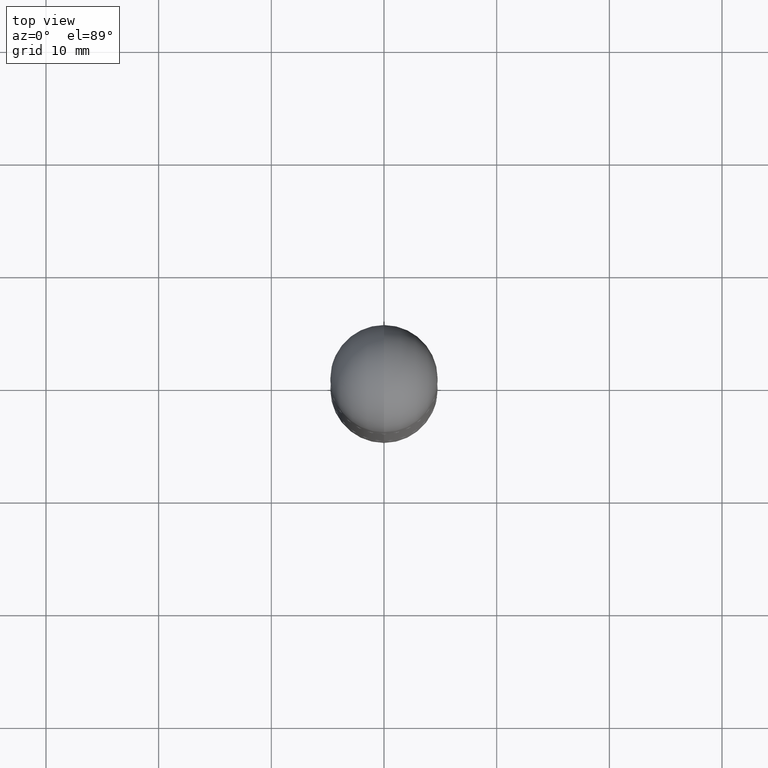
[diagram: clean part render]
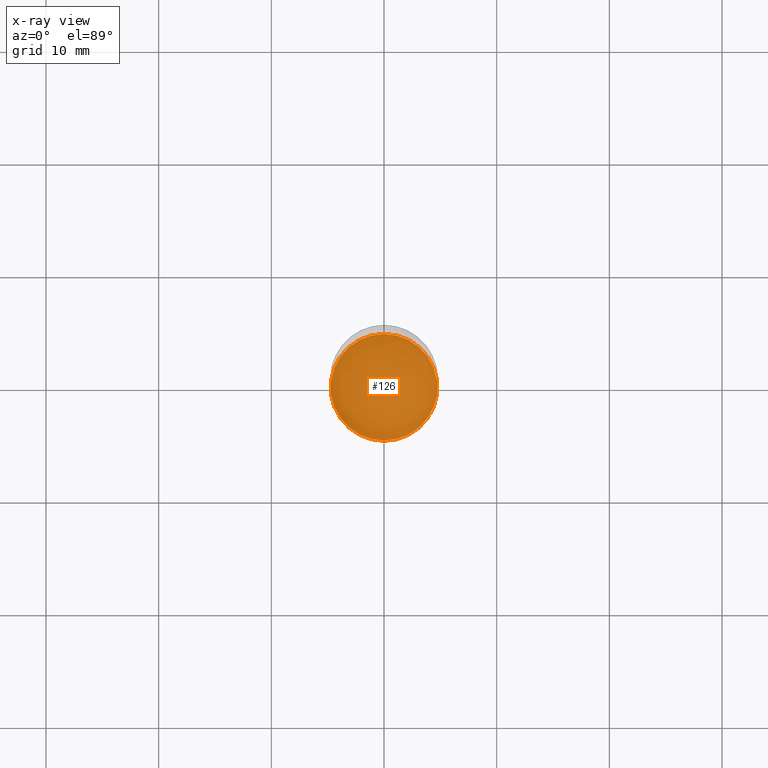
[diagram: x-ray — body ghosted, one internal face saturated and labeled with its STEP entity id]
A machine part, top view, then the same camera in x-ray: the body is ghosted and one INTERNAL B-rep face — a face not visible from any outside direction — is saturated and labeled: STEP entity #126.
In plain terms, the highlighted planar face has unit normal (-0, 0, 1).
Its self-contained STEP definition (entity closure, byte-faithful):
#20 = CIRCLE ( 'NONE', #702, 0.1864999999999999714 ) ;
#65 = ORIENTED_EDGE ( 'NONE', *, *, #229, .F. ) ;
#126 = ADVANCED_FACE ( 'NONE', ( #615 ), #689, .F. ) ;
#176 = CARTESIAN_POINT ( 'NONE',  ( 4.738049514509241279E-29, -6.768308160555480413E-15, -1.937999999999999945 ) ) ;
#187 = DIRECTION ( 'NONE',  ( -6.982962677686265922E-15, -1.000000000000000000, 2.929595703661408850E-15 ) ) ;
#220 = DIRECTION ( 'NONE',  ( -6.982962677686265922E-15, -1.000000000000000000, 2.929595703661408850E-15 ) ) ;
#229 = EDGE_CURVE ( 'NONE', #528, #714, #481, .T. ) ;
#290 = DIRECTION ( 'NONE',  ( -2.444813990974840691E-29, 3.492419071494056237E-15, 1.000000000000000000 ) ) ;
#291 = EDGE_CURVE ( 'NONE', #714, #528, #20, .T. ) ;
#314 = ORIENTED_EDGE ( 'NONE', *, *, #291, .F. ) ;
#354 = EDGE_LOOP ( 'NONE', ( #65, #314 ) ) ;
#459 = CARTESIAN_POINT ( 'NONE',  ( 1.328714915871435071E-15, 0.1864999999999932268, -1.938000000000000389 ) ) ;
#481 = CIRCLE ( 'NONE', #605, 0.1864999999999999714 ) ;
#511 = AXIS2_PLACEMENT_3D ( 'NONE', #611, #290, #550 ) ;
#528 = VERTEX_POINT ( 'NONE', #532 ) ;
#532 = CARTESIAN_POINT ( 'NONE',  ( -1.302322539388441071E-15, -0.1865000000000067437, -1.937999999999999279 ) ) ;
#550 = DIRECTION ( 'NONE',  ( -6.982962677686265922E-15, -1.000000000000000000, 3.492419071494056237E-15 ) ) ;
#605 = AXIS2_PLACEMENT_3D ( 'NONE', #176, #621, #220 ) ;
#611 = CARTESIAN_POINT ( 'NONE',  ( 4.738049514509241279E-29, -6.768308160555480413E-15, -1.937999999999999945 ) ) ;
#615 = FACE_OUTER_BOUND ( 'NONE', #354, .T. ) ;
#621 = DIRECTION ( 'NONE',  ( -2.444813990974840691E-29, 3.492419071494056237E-15, 1.000000000000000000 ) ) ;
#644 = CARTESIAN_POINT ( 'NONE',  ( 4.738049514509241279E-29, -6.768308160555480413E-15, -1.937999999999999945 ) ) ;
#689 = PLANE ( 'NONE',  #511 ) ;
#702 = AXIS2_PLACEMENT_3D ( 'NONE', #644, #809, #187 ) ;
#714 = VERTEX_POINT ( 'NONE', #459 ) ;
#809 = DIRECTION ( 'NONE',  ( -2.444813990974840691E-29, 3.492419071494056237E-15, 1.000000000000000000 ) ) ;